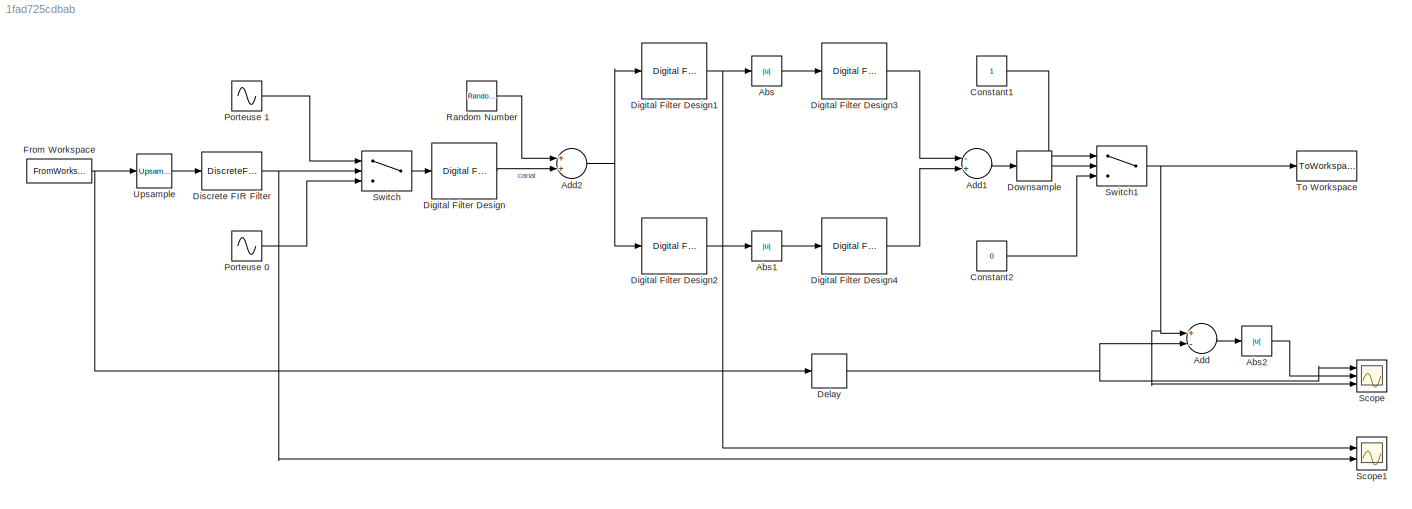
MODEL slx_1fad725cdbab
KIND model
CONFIG AbsTol = auto
CONFIG FixedStep = 1/2000000
CONFIG MaxStep = auto
CONFIG MinStep = auto
CONFIG RelTol = 1e-3
CONFIG SampleTimeConstraint = Unconstrained
CONFIG Solver = FixedStepDiscrete
CONFIG SolverMode = Auto
CONFIG SolverName = FixedStepDiscrete
CONFIG StartTime = 0.0
CONFIG StopTime = 1.1
BLOCK [Abs] Abs
  SaturateOnIntegerOverflow = off
BLOCK [Abs] Abs1
  SaturateOnIntegerOverflow = off
BLOCK [Abs] Abs2
  SaturateOnIntegerOverflow = off
BLOCK [Sum] Add
  InputSameDT = off
  Inputs = +-
  OutDataTypeStr = Inherit: Inherit via internal rule
  Ports = [2, 1]
  SaturateOnIntegerOverflow = off
BLOCK [Sum] Add1
  InputSameDT = off
  Inputs = -+
  OutDataTypeStr = Inherit: Inherit via internal rule
  Ports = [2, 1]
  SaturateOnIntegerOverflow = off
BLOCK [Sum] Add2
  InputSameDT = off
  OutDataTypeStr = Inherit: Inherit via internal rule
  Ports = [2, 1]
  SaturateOnIntegerOverflow = off
BLOCK [Constant] Constant1
  SampleTime = -1
BLOCK [Constant] Constant2
  SampleTime = -1
  Value = 0
BLOCK [Delay] Delay
  DelayLength = 3
  InitialCondition = 1
  InputPortMap = u0
  Ports = [1, 1]
BLOCK [Reference] Digital Filter Design  REF=dsparch4/Digital
Filter Design
  Ports = [1, 1]
  SourceBlock = dsparch4/Digital\nFilter Design
  SourceType = Digital Filter Design
  UserDataPersistent = on
BLOCK [Reference] Digital Filter Design1  REF=dsparch4/Digital
Filter Design
  Ports = [1, 1]
  SourceBlock = dsparch4/Digital\nFilter Design
  SourceType = Digital Filter Design
  UserDataPersistent = on
BLOCK [Reference] Digital Filter Design2  REF=dsparch4/Digital
Filter Design
  Ports = [1, 1]
  SourceBlock = dsparch4/Digital\nFilter Design
  SourceType = Digital Filter Design
  UserDataPersistent = on
BLOCK [Reference] Digital Filter Design3  REF=dsparch4/Digital
Filter Design
  Ports = [1, 1]
  SourceBlock = dsparch4/Digital\nFilter Design
  SourceType = Digital Filter Design
  UserDataPersistent = on
BLOCK [Reference] Digital Filter Design4  REF=dsparch4/Digital
Filter Design
  Ports = [1, 1]
  SourceBlock = dsparch4/Digital\nFilter Design
  SourceType = Digital Filter Design
  UserDataPersistent = on
BLOCK [DiscreteFir] Discrete FIR Filter
  Coefficients = ones(1,2000)
  InputPortMap = u0
  OutputPortMap = o0
  Ports = [1, 1]
BLOCK [DownSample] Downsample
  N = 2000
  RateOptions = Allow multirate processing
BLOCK [FromWorkspace] From Workspace
  SampleTime = 1/1000
  VariableName = fsk_input
  ZeroCross = on
BLOCK [Sin] Porteuse 0
  Frequency = 72500*2*pi
  Ports = [0, 1]
  SampleTime = 1/2000000
BLOCK [Sin] Porteuse 1
  Frequency = 77500*2*pi
  Ports = [0, 1]
  SampleTime = 1/2000000
BLOCK [RandomNumber] Random Number
  SampleTime = 1/2000000
  Variance = 20
BLOCK [Scope] Scope
  NumInputPorts = 3
  Ports = [3]
  ScopeSpecificationString = Simulink.scopes.TimeScopeBlockCfg('CurrentConfiguration', extmgr.ConfigurationSet(extmgr.Configuration('Core','General UI',true),extmgr.Configuration('Core','Source UI',true),extmgr.Configuration('Sources','WiredSimulink',true),extmgr.Configuration('Visuals','Time Domain',true,'SerializedDisplays',{struct('MinYLimReal','-0.125','MaxYLimReal','1.125','YLabelReal','','MinYLimMag','0.00000','MaxYLimM...<+3447ch>
BLOCK [Scope] Scope1
  NumInputPorts = 2
  Ports = [2]
  ScopeSpecificationString = Simulink.scopes.TimeScopeBlockCfg('CurrentConfiguration', extmgr.ConfigurationSet(extmgr.Configuration('Core','General UI',true),extmgr.Configuration('Core','Source UI',true),extmgr.Configuration('Sources','WiredSimulink',true,'DataLoggingVariableName','ScopeData1'),extmgr.Configuration('Visuals','Time Domain',true,'SerializedDisplays',{struct('MinYLimReal','-1.20167','MaxYLimReal','1.20167','YLab...<+3493ch>
BLOCK [Switch] Switch
  Criteria = u2 > Threshold
  InputSameDT = off
  SaturateOnIntegerOverflow = off
  Threshold = 0.2
BLOCK [Switch] Switch1
  Criteria = u2 > Threshold
  InputSameDT = off
  SaturateOnIntegerOverflow = off
BLOCK [ToWorkspace] To Workspace
  FixptAsFi = on
  MaxDataPoints = inf
  Ports = [1]
  SampleTime = -1
  Save2DSignal = 2-D array (concatenate along first dimension)
  VariableName = fsk_output
BLOCK [Reference] Upsample  REF=dspsigops/Upsample
  Ports = [1, 1]
  SourceBlock = dspsigops/Upsample
  SourceType = Upsample
  UserDataPersistent = on
LINE Abs1:1 -> Digital Filter Design4:1
LINE Abs2:1 -> Scope:2
LINE Abs:1 -> Digital Filter Design3:1
LINE Add1:1 -> Downsample:1
NET Add2:1 -> Digital Filter Design1:1, Digital Filter Design2:1
LINE Add:1 -> Abs2:1
LINE Constant1:1 -> Switch1:1
LINE Constant2:1 -> Switch1:3
NET Delay:1 -> Add:2, Scope:1
NET Digital Filter Design1:1 -> Abs:1, Scope1:1
LINE Digital Filter Design2:1 -> Abs1:1
LINE Digital Filter Design3:1 -> Add1:1
LINE Digital Filter Design4:1 -> Add1:2
LINE Digital Filter Design:1 -> Add2:2
NET Discrete FIR Filter:1 -> Scope1:2, Switch:2
LINE Downsample:1 -> Switch1:2
NET From Workspace:1 -> Delay:1, Upsample:1
LINE Porteuse 0:1 -> Switch:3
LINE Porteuse 1:1 -> Switch:1
LINE Random Number:1 -> Add2:1
NET Switch1:1 -> Add:1, Scope:3, To Workspace:1
LINE Switch:1 -> Digital Filter Design:1
LINE Upsample:1 -> Discrete FIR Filter:1
note: NET lines group one-source signal fan-out (src -> all destinations, sorted); 1:1 wires keep LINE
